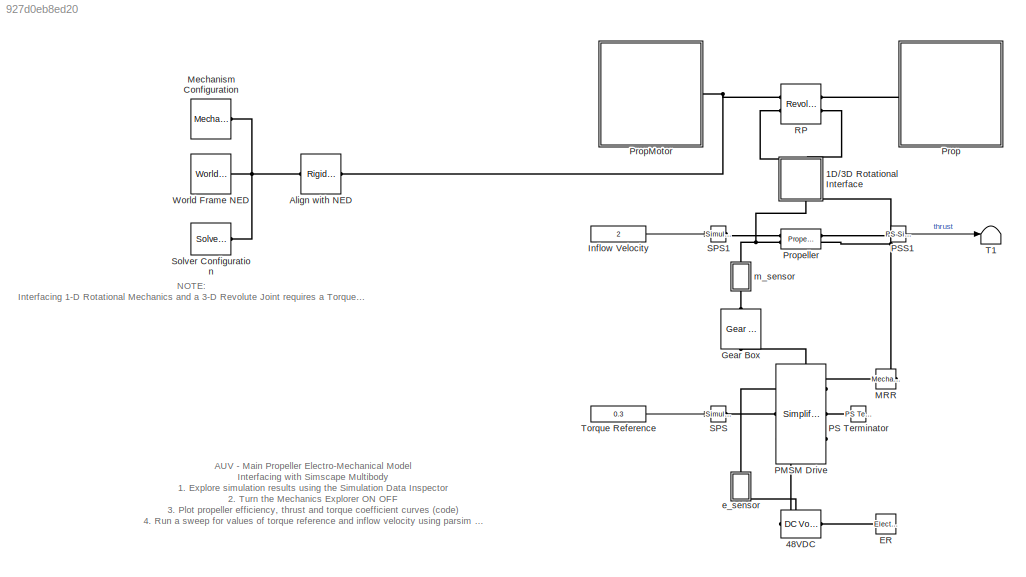
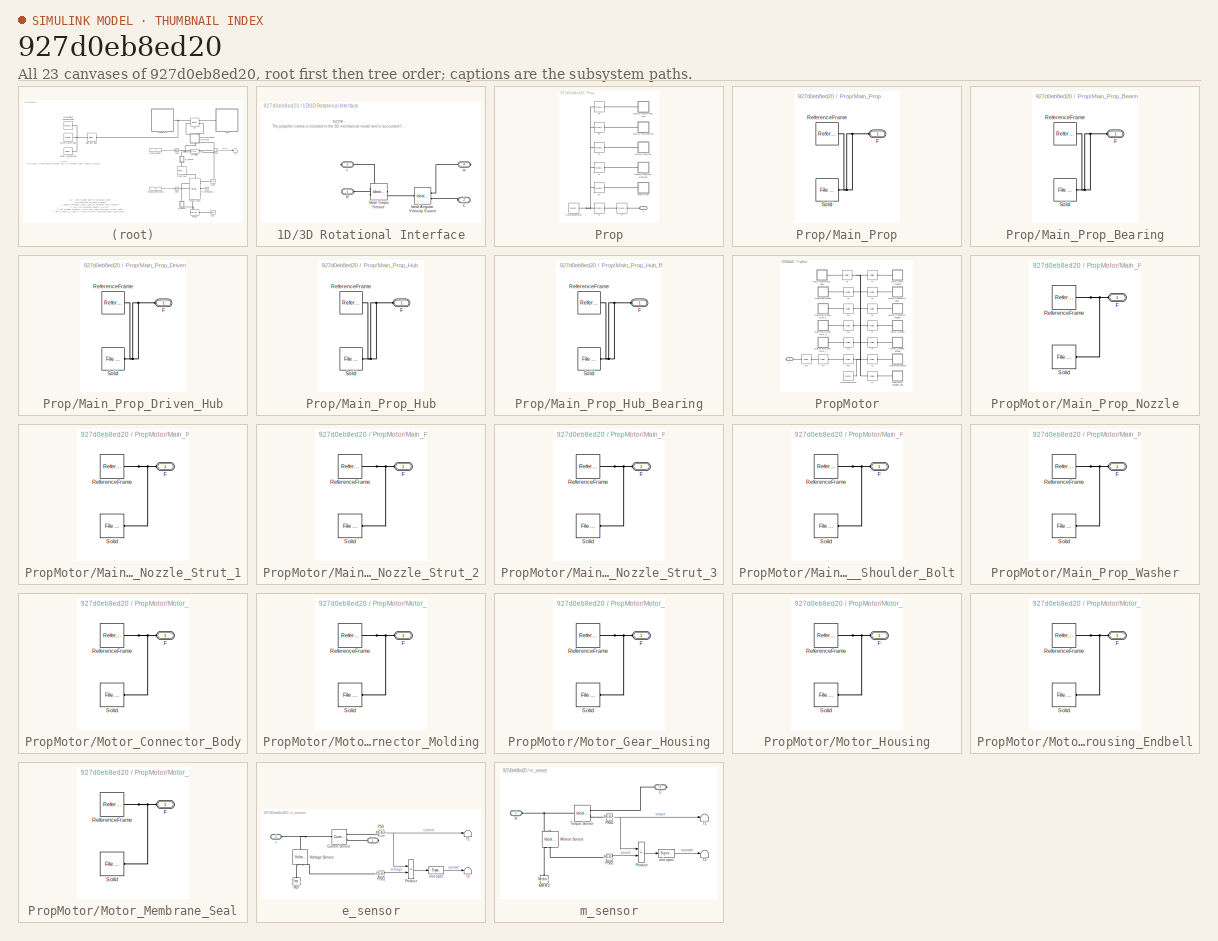
[diagram: thumbnail index - all 23 canvases of the model, root first then tree order]
MODEL slx_927d0eb8ed20
KIND model
CONFIG AbsTol = auto
CONFIG EnableMultiTasking = on
CONFIG FixedStep = auto
CONFIG MaxStep = 0.01
CONFIG MinStep = auto
CONFIG PreLoadFcn = AUV_VehicleParameters;
CONFIG RelTol = 1e-3
CONFIG SampleTimeConstraint = Unconstrained
CONFIG Solver = ode23t
CONFIG SolverName = ode23t
CONFIG StartTime = 0.0
CONFIG StopTime = 0.5
WORKSPACE source: external: MATLAB File  (data not in archive)
BLOCK [SubSystem] 1D//3D Rotational Interface
  NameLocation = right
  Ports = [0, 0, 0, 0, 0, 2, 2]
  RequestExecContextInheritance = off
BLOCK [PMIOPort] 1D//3D Rotational Interface/C
  Port = 2
  Side = Left
BLOCK [Reference] 1D//3D Rotational Interface/Ideal Angular Velocity Source  REF=fl_lib/Mechanical/Mechanical Sources/Ideal Angular
Velocity Source
  Ports = [0, 0, 0, 0, 0, 1, 2]
  SourceBlock = fl_lib/Mechanical/Mechanical Sources/Ideal Angular\nVelocity Source
  SourceProductBaseCode = SS
  SourceType = Ideal Angular\nVelocity Source
BLOCK [Reference] 1D//3D Rotational Interface/Ideal Torque Sensor  REF=fl_lib/Mechanical/Mechanical Sensors/Ideal Torque Sensor
  Ports = [0, 0, 0, 0, 0, 1, 2]
  SourceBlock = fl_lib/Mechanical/Mechanical Sensors/Ideal Torque Sensor
  SourceProductBaseCode = SS
  SourceType = Ideal Torque Sensor
BLOCK [PMIOPort] 1D//3D Rotational Interface/R
  Side = Left
BLOCK [PMIOPort] 1D//3D Rotational Interface/t
  Port = 3
  Side = Right
BLOCK [PMIOPort] 1D//3D Rotational Interface/w
  Port = 4
  Side = Right
BLOCK [Reference] 48VDC  REF=fl_lib/Electrical/Electrical Sources/DC Voltage Source
  Ports = [0, 0, 0, 0, 0, 1, 1]
  SourceBlock = fl_lib/Electrical/Electrical Sources/DC Voltage Source
  SourceProductBaseCode = SS
  SourceType = DC Voltage Source
BLOCK [Reference] Align with NED  REF=sm_lib/Frames and
Transforms/Rigid
Transform
  Ports = [0, 0, 0, 0, 0, 1, 1]
  SourceBlock = sm_lib/Frames and\nTransforms/Rigid\nTransform
  SourceProductBaseCode = MS
  SourceType = Rigid\nTransform
BLOCK [Reference] ER  REF=fl_lib/Electrical/Electrical Elements/Electrical Reference
  NameLocation = top
  Ports = [0, 0, 0, 0, 0, 1]
  SourceBlock = fl_lib/Electrical/Electrical Elements/Electrical Reference
  SourceProductBaseCode = SS
  SourceType = Electrical Reference
BLOCK [Reference] Gear Box  REF=fl_lib/Mechanical/Mechanisms/Gear Box
  NameLocation = right
  Ports = [0, 0, 0, 0, 0, 1, 1]
  SourceBlock = fl_lib/Mechanical/Mechanisms/Gear Box
  SourceProductBaseCode = SS
  SourceType = Gear Box
BLOCK [Constant] Inflow Velocity
  Value = 2
BLOCK [Reference] MRR  REF=fl_lib/Mechanical/Rotational Elements/Mechanical
Rotational Reference
  NameLocation = top
  Ports = [0, 0, 0, 0, 0, 1]
  SourceBlock = fl_lib/Mechanical/Rotational Elements/Mechanical\nRotational Reference
  SourceProductBaseCode = SS
  SourceType = Mechanical\nRotational Reference
BLOCK [Reference] Mechanism Configuration  REF=sm_lib/Utilities/Mechanism
Configuration
  NameLocation = top
  Ports = [0, 0, 0, 0, 0, 0, 1]
  SourceBlock = sm_lib/Utilities/Mechanism\nConfiguration
  SourceProductBaseCode = MS
  SourceType = Mechanism\nConfiguration
BLOCK [Reference] PMSM Drive  REF=ee_lib/Electromechanical/Permanent Magnet/Simplified PMSM
Drive
  Ports = [0, 0, 0, 0, 0, 3, 3]
  SourceBlock = ee_lib/Electromechanical/Permanent Magnet/Simplified PMSM\nDrive
  SourceProductBaseCode = PS
  SourceType = Simplified PMSM\nDrive
BLOCK [Reference] PS Terminator  REF=fl_lib/Physical Signals/Sinks/PS Terminator
  Ports = [0, 0, 0, 0, 0, 1]
  SourceBlock = fl_lib/Physical Signals/Sinks/PS Terminator
  SourceProductBaseCode = SS
  SourceType = PS Terminator
BLOCK [Reference] PSS1  REF=nesl_utility/PS-Simulink
Converter
  Ports = [0, 1, 0, 0, 0, 1]
  SourceBlock = nesl_utility/PS-Simulink\nConverter
  SourceProductBaseCode = SS
  SourceType = PS-Simulink\nConverter
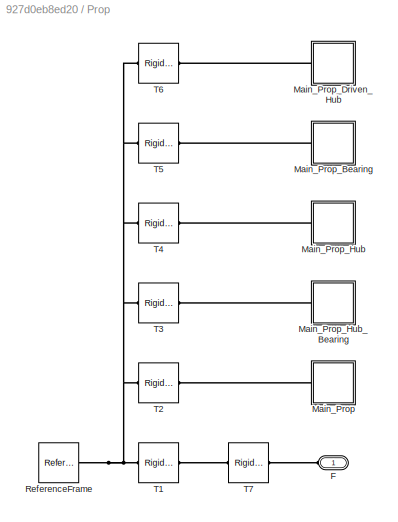
BLOCK [SubSystem] Prop
  Ports = [0, 0, 0, 0, 0, 1]
  RequestExecContextInheritance = off
BLOCK [PMIOPort] Prop/F
  Side = Left
BLOCK [SubSystem] Prop/Main_Prop
  Ports = [0, 0, 0, 0, 0, 1]
  RequestExecContextInheritance = off
BLOCK [PMIOPort] Prop/Main_Prop/F
  Side = Left
BLOCK [Reference] Prop/Main_Prop/ReferenceFrame  REF=sm_lib/Frames and
Transforms/Reference
Frame
  Ports = [0, 0, 0, 0, 0, 0, 1]
  SourceBlock = sm_lib/Frames and\nTransforms/Reference\nFrame
  SourceProductBaseCode = MS
  SourceType = Reference\nFrame
BLOCK [Reference] Prop/Main_Prop/Solid  REF=sm_lib/Body Elements/File Solid
  Ports = [0, 0, 0, 0, 0, 0, 1]
  SourceBlock = sm_lib/Body Elements/File Solid
  SourceProductBaseCode = MS
  SourceType = File Solid
BLOCK [SubSystem] Prop/Main_Prop_Bearing
  Ports = [0, 0, 0, 0, 0, 1]
  RequestExecContextInheritance = off
BLOCK [PMIOPort] Prop/Main_Prop_Bearing/F
  Side = Left
BLOCK [Reference] Prop/Main_Prop_Bearing/ReferenceFrame  REF=sm_lib/Frames and
Transforms/Reference
Frame
  Ports = [0, 0, 0, 0, 0, 0, 1]
  SourceBlock = sm_lib/Frames and\nTransforms/Reference\nFrame
  SourceProductBaseCode = MS
  SourceType = Reference\nFrame
BLOCK [Reference] Prop/Main_Prop_Bearing/Solid  REF=sm_lib/Body Elements/File Solid
  Ports = [0, 0, 0, 0, 0, 0, 1]
  SourceBlock = sm_lib/Body Elements/File Solid
  SourceProductBaseCode = MS
  SourceType = File Solid
BLOCK [SubSystem] Prop/Main_Prop_Driven_Hub
  Ports = [0, 0, 0, 0, 0, 1]
  RequestExecContextInheritance = off
BLOCK [PMIOPort] Prop/Main_Prop_Driven_Hub/F
  Side = Left
BLOCK [Reference] Prop/Main_Prop_Driven_Hub/ReferenceFrame  REF=sm_lib/Frames and
Transforms/Reference
Frame
  Ports = [0, 0, 0, 0, 0, 0, 1]
  SourceBlock = sm_lib/Frames and\nTransforms/Reference\nFrame
  SourceProductBaseCode = MS
  SourceType = Reference\nFrame
BLOCK [Reference] Prop/Main_Prop_Driven_Hub/Solid  REF=sm_lib/Body Elements/File Solid
  Ports = [0, 0, 0, 0, 0, 0, 1]
  SourceBlock = sm_lib/Body Elements/File Solid
  SourceProductBaseCode = MS
  SourceType = File Solid
BLOCK [SubSystem] Prop/Main_Prop_Hub
  Ports = [0, 0, 0, 0, 0, 1]
  RequestExecContextInheritance = off
BLOCK [PMIOPort] Prop/Main_Prop_Hub/F
  Side = Left
BLOCK [Reference] Prop/Main_Prop_Hub/ReferenceFrame  REF=sm_lib/Frames and
Transforms/Reference
Frame
  Ports = [0, 0, 0, 0, 0, 0, 1]
  SourceBlock = sm_lib/Frames and\nTransforms/Reference\nFrame
  SourceProductBaseCode = MS
  SourceType = Reference\nFrame
BLOCK [Reference] Prop/Main_Prop_Hub/Solid  REF=sm_lib/Body Elements/File Solid
  Ports = [0, 0, 0, 0, 0, 0, 1]
  SourceBlock = sm_lib/Body Elements/File Solid
  SourceProductBaseCode = MS
  SourceType = File Solid
BLOCK [SubSystem] Prop/Main_Prop_Hub_Bearing
  Ports = [0, 0, 0, 0, 0, 1]
  RequestExecContextInheritance = off
BLOCK [PMIOPort] Prop/Main_Prop_Hub_Bearing/F
  Side = Left
BLOCK [Reference] Prop/Main_Prop_Hub_Bearing/ReferenceFrame  REF=sm_lib/Frames and
Transforms/Reference
Frame
  Ports = [0, 0, 0, 0, 0, 0, 1]
  SourceBlock = sm_lib/Frames and\nTransforms/Reference\nFrame
  SourceProductBaseCode = MS
  SourceType = Reference\nFrame
BLOCK [Reference] Prop/Main_Prop_Hub_Bearing/Solid  REF=sm_lib/Body Elements/File Solid
  Ports = [0, 0, 0, 0, 0, 0, 1]
  SourceBlock = sm_lib/Body Elements/File Solid
  SourceProductBaseCode = MS
  SourceType = File Solid
BLOCK [Reference] Prop/ReferenceFrame  REF=sm_lib/Frames and
Transforms/Reference
Frame
  Ports = [0, 0, 0, 0, 0, 0, 1]
  SourceBlock = sm_lib/Frames and\nTransforms/Reference\nFrame
  SourceProductBaseCode = MS
  SourceType = Reference\nFrame
BLOCK [Reference] Prop/T1  REF=sm_lib/Frames and
Transforms/Rigid
Transform
  Ports = [0, 0, 0, 0, 0, 1, 1]
  SourceBlock = sm_lib/Frames and\nTransforms/Rigid\nTransform
  SourceProductBaseCode = MS
  SourceType = Rigid\nTransform
BLOCK [Reference] Prop/T2  REF=sm_lib/Frames and
Transforms/Rigid
Transform
  Ports = [0, 0, 0, 0, 0, 1, 1]
  SourceBlock = sm_lib/Frames and\nTransforms/Rigid\nTransform
  SourceProductBaseCode = MS
  SourceType = Rigid\nTransform
BLOCK [Reference] Prop/T3  REF=sm_lib/Frames and
Transforms/Rigid
Transform
  Ports = [0, 0, 0, 0, 0, 1, 1]
  SourceBlock = sm_lib/Frames and\nTransforms/Rigid\nTransform
  SourceProductBaseCode = MS
  SourceType = Rigid\nTransform
BLOCK [Reference] Prop/T4  REF=sm_lib/Frames and
Transforms/Rigid
Transform
  Ports = [0, 0, 0, 0, 0, 1, 1]
  SourceBlock = sm_lib/Frames and\nTransforms/Rigid\nTransform
  SourceProductBaseCode = MS
  SourceType = Rigid\nTransform
BLOCK [Reference] Prop/T5  REF=sm_lib/Frames and
Transforms/Rigid
Transform
  Ports = [0, 0, 0, 0, 0, 1, 1]
  SourceBlock = sm_lib/Frames and\nTransforms/Rigid\nTransform
  SourceProductBaseCode = MS
  SourceType = Rigid\nTransform
BLOCK [Reference] Prop/T6  REF=sm_lib/Frames and
Transforms/Rigid
Transform
  Ports = [0, 0, 0, 0, 0, 1, 1]
  SourceBlock = sm_lib/Frames and\nTransforms/Rigid\nTransform
  SourceProductBaseCode = MS
  SourceType = Rigid\nTransform
BLOCK [Reference] Prop/T7  REF=sm_lib/Frames and
Transforms/Rigid
Transform
  Ports = [0, 0, 0, 0, 0, 1, 1]
  SourceBlock = sm_lib/Frames and\nTransforms/Rigid\nTransform
  SourceProductBaseCode = MS
  SourceType = Rigid\nTransform
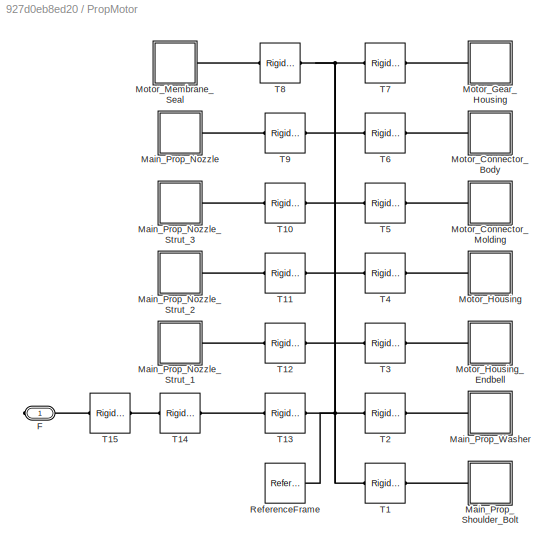
BLOCK [SubSystem] PropMotor
  Ports = [0, 0, 0, 0, 0, 0, 1]
  RequestExecContextInheritance = off
BLOCK [PMIOPort] PropMotor/F
  Side = Right
BLOCK [SubSystem] PropMotor/Main_Prop_Nozzle
  Ports = [0, 0, 0, 0, 0, 1]
  RequestExecContextInheritance = off
BLOCK [PMIOPort] PropMotor/Main_Prop_Nozzle/F
  Side = Left
BLOCK [Reference] PropMotor/Main_Prop_Nozzle/ReferenceFrame  REF=sm_lib/Frames and
Transforms/Reference
Frame
  Ports = [0, 0, 0, 0, 0, 0, 1]
  SourceBlock = sm_lib/Frames and\nTransforms/Reference\nFrame
  SourceProductBaseCode = MS
  SourceType = Reference\nFrame
BLOCK [Reference] PropMotor/Main_Prop_Nozzle/Solid  REF=sm_lib/Body Elements/File Solid
  Ports = [0, 0, 0, 0, 0, 0, 1]
  SourceBlock = sm_lib/Body Elements/File Solid
  SourceProductBaseCode = MS
  SourceType = File Solid
BLOCK [SubSystem] PropMotor/Main_Prop_Nozzle_Strut_1
  Ports = [0, 0, 0, 0, 0, 1]
  RequestExecContextInheritance = off
BLOCK [PMIOPort] PropMotor/Main_Prop_Nozzle_Strut_1/F
  Side = Left
BLOCK [Reference] PropMotor/Main_Prop_Nozzle_Strut_1/ReferenceFrame  REF=sm_lib/Frames and
Transforms/Reference
Frame
  Ports = [0, 0, 0, 0, 0, 0, 1]
  SourceBlock = sm_lib/Frames and\nTransforms/Reference\nFrame
  SourceProductBaseCode = MS
  SourceType = Reference\nFrame
BLOCK [Reference] PropMotor/Main_Prop_Nozzle_Strut_1/Solid  REF=sm_lib/Body Elements/File Solid
  Ports = [0, 0, 0, 0, 0, 0, 1]
  SourceBlock = sm_lib/Body Elements/File Solid
  SourceProductBaseCode = MS
  SourceType = File Solid
BLOCK [SubSystem] PropMotor/Main_Prop_Nozzle_Strut_2
  Ports = [0, 0, 0, 0, 0, 1]
  RequestExecContextInheritance = off
BLOCK [PMIOPort] PropMotor/Main_Prop_Nozzle_Strut_2/F
  Side = Left
BLOCK [Reference] PropMotor/Main_Prop_Nozzle_Strut_2/ReferenceFrame  REF=sm_lib/Frames and
Transforms/Reference
Frame
  Ports = [0, 0, 0, 0, 0, 0, 1]
  SourceBlock = sm_lib/Frames and\nTransforms/Reference\nFrame
  SourceProductBaseCode = MS
  SourceType = Reference\nFrame
BLOCK [Reference] PropMotor/Main_Prop_Nozzle_Strut_2/Solid  REF=sm_lib/Body Elements/File Solid
  Ports = [0, 0, 0, 0, 0, 0, 1]
  SourceBlock = sm_lib/Body Elements/File Solid
  SourceProductBaseCode = MS
  SourceType = File Solid
BLOCK [SubSystem] PropMotor/Main_Prop_Nozzle_Strut_3
  Ports = [0, 0, 0, 0, 0, 1]
  RequestExecContextInheritance = off
BLOCK [PMIOPort] PropMotor/Main_Prop_Nozzle_Strut_3/F
  Side = Left
BLOCK [Reference] PropMotor/Main_Prop_Nozzle_Strut_3/ReferenceFrame  REF=sm_lib/Frames and
Transforms/Reference
Frame
  Ports = [0, 0, 0, 0, 0, 0, 1]
  SourceBlock = sm_lib/Frames and\nTransforms/Reference\nFrame
  SourceProductBaseCode = MS
  SourceType = Reference\nFrame
BLOCK [Reference] PropMotor/Main_Prop_Nozzle_Strut_3/Solid  REF=sm_lib/Body Elements/File Solid
  Ports = [0, 0, 0, 0, 0, 0, 1]
  SourceBlock = sm_lib/Body Elements/File Solid
  SourceProductBaseCode = MS
  SourceType = File Solid
BLOCK [SubSystem] PropMotor/Main_Prop_Shoulder_Bolt
  Ports = [0, 0, 0, 0, 0, 1]
  RequestExecContextInheritance = off
BLOCK [PMIOPort] PropMotor/Main_Prop_Shoulder_Bolt/F
  Side = Left
BLOCK [Reference] PropMotor/Main_Prop_Shoulder_Bolt/ReferenceFrame  REF=sm_lib/Frames and
Transforms/Reference
Frame
  Ports = [0, 0, 0, 0, 0, 0, 1]
  SourceBlock = sm_lib/Frames and\nTransforms/Reference\nFrame
  SourceProductBaseCode = MS
  SourceType = Reference\nFrame
BLOCK [Reference] PropMotor/Main_Prop_Shoulder_Bolt/Solid  REF=sm_lib/Body Elements/File Solid
  Ports = [0, 0, 0, 0, 0, 0, 1]
  SourceBlock = sm_lib/Body Elements/File Solid
  SourceProductBaseCode = MS
  SourceType = File Solid
BLOCK [SubSystem] PropMotor/Main_Prop_Washer
  Ports = [0, 0, 0, 0, 0, 1]
  RequestExecContextInheritance = off
BLOCK [PMIOPort] PropMotor/Main_Prop_Washer/F
  Side = Left
BLOCK [Reference] PropMotor/Main_Prop_Washer/ReferenceFrame  REF=sm_lib/Frames and
Transforms/Reference
Frame
  Ports = [0, 0, 0, 0, 0, 0, 1]
  SourceBlock = sm_lib/Frames and\nTransforms/Reference\nFrame
  SourceProductBaseCode = MS
  SourceType = Reference\nFrame
BLOCK [Reference] PropMotor/Main_Prop_Washer/Solid  REF=sm_lib/Body Elements/File Solid
  Ports = [0, 0, 0, 0, 0, 0, 1]
  SourceBlock = sm_lib/Body Elements/File Solid
  SourceProductBaseCode = MS
  SourceType = File Solid
BLOCK [SubSystem] PropMotor/Motor_Connector_Body
  Ports = [0, 0, 0, 0, 0, 1]
  RequestExecContextInheritance = off
BLOCK [PMIOPort] PropMotor/Motor_Connector_Body/F
  Side = Left
BLOCK [Reference] PropMotor/Motor_Connector_Body/ReferenceFrame  REF=sm_lib/Frames and
Transforms/Reference
Frame
  Ports = [0, 0, 0, 0, 0, 0, 1]
  SourceBlock = sm_lib/Frames and\nTransforms/Reference\nFrame
  SourceProductBaseCode = MS
  SourceType = Reference\nFrame
BLOCK [Reference] PropMotor/Motor_Connector_Body/Solid  REF=sm_lib/Body Elements/File Solid
  Ports = [0, 0, 0, 0, 0, 0, 1]
  SourceBlock = sm_lib/Body Elements/File Solid
  SourceProductBaseCode = MS
  SourceType = File Solid
BLOCK [SubSystem] PropMotor/Motor_Connector_Molding
  Ports = [0, 0, 0, 0, 0, 1]
  RequestExecContextInheritance = off
BLOCK [PMIOPort] PropMotor/Motor_Connector_Molding/F
  Side = Left
BLOCK [Reference] PropMotor/Motor_Connector_Molding/ReferenceFrame  REF=sm_lib/Frames and
Transforms/Reference
Frame
  Ports = [0, 0, 0, 0, 0, 0, 1]
  SourceBlock = sm_lib/Frames and\nTransforms/Reference\nFrame
  SourceProductBaseCode = MS
  SourceType = Reference\nFrame
BLOCK [Reference] PropMotor/Motor_Connector_Molding/Solid  REF=sm_lib/Body Elements/File Solid
  Ports = [0, 0, 0, 0, 0, 0, 1]
  SourceBlock = sm_lib/Body Elements/File Solid
  SourceProductBaseCode = MS
  SourceType = File Solid
BLOCK [SubSystem] PropMotor/Motor_Gear_Housing
  Ports = [0, 0, 0, 0, 0, 1]
  RequestExecContextInheritance = off
BLOCK [PMIOPort] PropMotor/Motor_Gear_Housing/F
  Side = Left
BLOCK [Reference] PropMotor/Motor_Gear_Housing/ReferenceFrame  REF=sm_lib/Frames and
Transforms/Reference
Frame
  Ports = [0, 0, 0, 0, 0, 0, 1]
  SourceBlock = sm_lib/Frames and\nTransforms/Reference\nFrame
  SourceProductBaseCode = MS
  SourceType = Reference\nFrame
BLOCK [Reference] PropMotor/Motor_Gear_Housing/Solid  REF=sm_lib/Body Elements/File Solid
  Ports = [0, 0, 0, 0, 0, 0, 1]
  SourceBlock = sm_lib/Body Elements/File Solid
  SourceProductBaseCode = MS
  SourceType = File Solid
BLOCK [SubSystem] PropMotor/Motor_Housing
  Ports = [0, 0, 0, 0, 0, 1]
  RequestExecContextInheritance = off
BLOCK [PMIOPort] PropMotor/Motor_Housing/F
  Side = Left
BLOCK [Reference] PropMotor/Motor_Housing/ReferenceFrame  REF=sm_lib/Frames and
Transforms/Reference
Frame
  Ports = [0, 0, 0, 0, 0, 0, 1]
  SourceBlock = sm_lib/Frames and\nTransforms/Reference\nFrame
  SourceProductBaseCode = MS
  SourceType = Reference\nFrame
BLOCK [Reference] PropMotor/Motor_Housing/Solid  REF=sm_lib/Body Elements/File Solid
  Ports = [0, 0, 0, 0, 0, 0, 1]
  SourceBlock = sm_lib/Body Elements/File Solid
  SourceProductBaseCode = MS
  SourceType = File Solid
BLOCK [SubSystem] PropMotor/Motor_Housing_Endbell
  Ports = [0, 0, 0, 0, 0, 1]
  RequestExecContextInheritance = off
BLOCK [PMIOPort] PropMotor/Motor_Housing_Endbell/F
  Side = Left
BLOCK [Reference] PropMotor/Motor_Housing_Endbell/ReferenceFrame  REF=sm_lib/Frames and
Transforms/Reference
Frame
  Ports = [0, 0, 0, 0, 0, 0, 1]
  SourceBlock = sm_lib/Frames and\nTransforms/Reference\nFrame
  SourceProductBaseCode = MS
  SourceType = Reference\nFrame
BLOCK [Reference] PropMotor/Motor_Housing_Endbell/Solid  REF=sm_lib/Body Elements/File Solid
  Ports = [0, 0, 0, 0, 0, 0, 1]
  SourceBlock = sm_lib/Body Elements/File Solid
  SourceProductBaseCode = MS
  SourceType = File Solid
BLOCK [SubSystem] PropMotor/Motor_Membrane_Seal
  Ports = [0, 0, 0, 0, 0, 1]
  RequestExecContextInheritance = off
BLOCK [PMIOPort] PropMotor/Motor_Membrane_Seal/F
  Side = Left
BLOCK [Reference] PropMotor/Motor_Membrane_Seal/ReferenceFrame  REF=sm_lib/Frames and
Transforms/Reference
Frame
  Ports = [0, 0, 0, 0, 0, 0, 1]
  SourceBlock = sm_lib/Frames and\nTransforms/Reference\nFrame
  SourceProductBaseCode = MS
  SourceType = Reference\nFrame
BLOCK [Reference] PropMotor/Motor_Membrane_Seal/Solid  REF=sm_lib/Body Elements/File Solid
  Ports = [0, 0, 0, 0, 0, 0, 1]
  SourceBlock = sm_lib/Body Elements/File Solid
  SourceProductBaseCode = MS
  SourceType = File Solid
BLOCK [Reference] PropMotor/ReferenceFrame  REF=sm_lib/Frames and
Transforms/Reference
Frame
  Ports = [0, 0, 0, 0, 0, 0, 1]
  SourceBlock = sm_lib/Frames and\nTransforms/Reference\nFrame
  SourceProductBaseCode = MS
  SourceType = Reference\nFrame
BLOCK [Reference] PropMotor/T1  REF=sm_lib/Frames and
Transforms/Rigid
Transform
  Ports = [0, 0, 0, 0, 0, 1, 1]
  SourceBlock = sm_lib/Frames and\nTransforms/Rigid\nTransform
  SourceProductBaseCode = MS
  SourceType = Rigid\nTransform
BLOCK [Reference] PropMotor/T10  REF=sm_lib/Frames and
Transforms/Rigid
Transform
  Ports = [0, 0, 0, 0, 0, 1, 1]
  SourceBlock = sm_lib/Frames and\nTransforms/Rigid\nTransform
  SourceProductBaseCode = MS
  SourceType = Rigid\nTransform
BLOCK [Reference] PropMotor/T11  REF=sm_lib/Frames and
Transforms/Rigid
Transform
  Ports = [0, 0, 0, 0, 0, 1, 1]
  SourceBlock = sm_lib/Frames and\nTransforms/Rigid\nTransform
  SourceProductBaseCode = MS
  SourceType = Rigid\nTransform
BLOCK [Reference] PropMotor/T12  REF=sm_lib/Frames and
Transforms/Rigid
Transform
  Ports = [0, 0, 0, 0, 0, 1, 1]
  SourceBlock = sm_lib/Frames and\nTransforms/Rigid\nTransform
  SourceProductBaseCode = MS
  SourceType = Rigid\nTransform
BLOCK [Reference] PropMotor/T13  REF=sm_lib/Frames and
Transforms/Rigid
Transform
  Ports = [0, 0, 0, 0, 0, 1, 1]
  SourceBlock = sm_lib/Frames and\nTransforms/Rigid\nTransform
  SourceProductBaseCode = MS
  SourceType = Rigid\nTransform
BLOCK [Reference] PropMotor/T14  REF=sm_lib/Frames and
Transforms/Rigid
Transform
  Ports = [0, 0, 0, 0, 0, 1, 1]
  SourceBlock = sm_lib/Frames and\nTransforms/Rigid\nTransform
  SourceProductBaseCode = MS
  SourceType = Rigid\nTransform
BLOCK [Reference] PropMotor/T15  REF=sm_lib/Frames and
Transforms/Rigid
Transform
  Ports = [0, 0, 0, 0, 0, 1, 1]
  SourceBlock = sm_lib/Frames and\nTransforms/Rigid\nTransform
  SourceProductBaseCode = MS
  SourceType = Rigid\nTransform
BLOCK [Reference] PropMotor/T2  REF=sm_lib/Frames and
Transforms/Rigid
Transform
  Ports = [0, 0, 0, 0, 0, 1, 1]
  SourceBlock = sm_lib/Frames and\nTransforms/Rigid\nTransform
  SourceProductBaseCode = MS
  SourceType = Rigid\nTransform
BLOCK [Reference] PropMotor/T3  REF=sm_lib/Frames and
Transforms/Rigid
Transform
  Ports = [0, 0, 0, 0, 0, 1, 1]
  SourceBlock = sm_lib/Frames and\nTransforms/Rigid\nTransform
  SourceProductBaseCode = MS
  SourceType = Rigid\nTransform
BLOCK [Reference] PropMotor/T4  REF=sm_lib/Frames and
Transforms/Rigid
Transform
  Ports = [0, 0, 0, 0, 0, 1, 1]
  SourceBlock = sm_lib/Frames and\nTransforms/Rigid\nTransform
  SourceProductBaseCode = MS
  SourceType = Rigid\nTransform
BLOCK [Reference] PropMotor/T5  REF=sm_lib/Frames and
Transforms/Rigid
Transform
  Ports = [0, 0, 0, 0, 0, 1, 1]
  SourceBlock = sm_lib/Frames and\nTransforms/Rigid\nTransform
  SourceProductBaseCode = MS
  SourceType = Rigid\nTransform
BLOCK [Reference] PropMotor/T6  REF=sm_lib/Frames and
Transforms/Rigid
Transform
  Ports = [0, 0, 0, 0, 0, 1, 1]
  SourceBlock = sm_lib/Frames and\nTransforms/Rigid\nTransform
  SourceProductBaseCode = MS
  SourceType = Rigid\nTransform
BLOCK [Reference] PropMotor/T7  REF=sm_lib/Frames and
Transforms/Rigid
Transform
  Ports = [0, 0, 0, 0, 0, 1, 1]
  SourceBlock = sm_lib/Frames and\nTransforms/Rigid\nTransform
  SourceProductBaseCode = MS
  SourceType = Rigid\nTransform
BLOCK [Reference] PropMotor/T8  REF=sm_lib/Frames and
Transforms/Rigid
Transform
  Ports = [0, 0, 0, 0, 0, 1, 1]
  SourceBlock = sm_lib/Frames and\nTransforms/Rigid\nTransform
  SourceProductBaseCode = MS
  SourceType = Rigid\nTransform
BLOCK [Reference] PropMotor/T9  REF=sm_lib/Frames and
Transforms/Rigid
Transform
  Ports = [0, 0, 0, 0, 0, 1, 1]
  SourceBlock = sm_lib/Frames and\nTransforms/Rigid\nTransform
  SourceProductBaseCode = MS
  SourceType = Rigid\nTransform
BLOCK [Reference] Propeller  REF=AUVPropulsionSSC_lib/Propeller
  Ports = [0, 0, 0, 0, 0, 2, 2]
  SourceBlock = AUVPropulsionSSC_lib/Propeller
  SourceType = Propeller
BLOCK [Reference] RP  REF=sm_lib/Joints/Revolute Joint
  Ports = [0, 0, 0, 0, 0, 2, 2]
  SourceBlock = sm_lib/Joints/Revolute Joint
  SourceProductBaseCode = MS
  SourceType = Revolute Joint
BLOCK [Reference] SPS  REF=nesl_utility/Simulink-PS
Converter
  Ports = [1, 0, 0, 0, 0, 0, 1]
  SourceBlock = nesl_utility/Simulink-PS\nConverter
  SourceProductBaseCode = SS
  SourceType = Simulink-PS\nConverter
BLOCK [Reference] SPS1  REF=nesl_utility/Simulink-PS
Converter
  Ports = [1, 0, 0, 0, 0, 0, 1]
  SourceBlock = nesl_utility/Simulink-PS\nConverter
  SourceProductBaseCode = SS
  SourceType = Simulink-PS\nConverter
BLOCK [Reference] Solver Configuration  REF=nesl_utility/Solver
Configuration
  NameLocation = top
  Ports = [0, 0, 0, 0, 0, 0, 1]
  SourceBlock = nesl_utility/Solver\nConfiguration
  SourceProductBaseCode = MT,SS
  SourceType = Solver\nConfiguration
BLOCK [Terminator] T1
BLOCK [Constant] Torque Reference
  Value = 0.3
BLOCK [Reference] World Frame NED  REF=sm_lib/Frames and
Transforms/World Frame
  Ports = [0, 0, 0, 0, 0, 0, 1]
  SourceBlock = sm_lib/Frames and\nTransforms/World Frame
  SourceProductBaseCode = MS
  SourceType = World Frame
BLOCK [SubSystem] e_sensor
  NameLocation = right
  Ports = [0, 0, 0, 0, 0, 1, 1]
  RequestExecContextInheritance = off
BLOCK [PMIOPort] e_sensor/+
  Side = Left
BLOCK [PMIOPort] e_sensor/-
  Port = 2
  Side = Right
BLOCK [Reference] e_sensor/Current Sensor  REF=fl_lib/Electrical/Electrical Sensors/Current Sensor
  Ports = [0, 0, 0, 0, 0, 1, 2]
  SourceBlock = fl_lib/Electrical/Electrical Sensors/Current Sensor
  SourceProductBaseCode = SS
  SourceType = Current Sensor
BLOCK [Reference] e_sensor/PSS  REF=nesl_utility/PS-Simulink
Converter
  Ports = [0, 1, 0, 0, 0, 1]
  SourceBlock = nesl_utility/PS-Simulink\nConverter
  SourceProductBaseCode = SS
  SourceType = PS-Simulink\nConverter
BLOCK [Reference] e_sensor/PSS1  REF=nesl_utility/PS-Simulink
Converter
  Ports = [0, 1, 0, 0, 0, 1]
  SourceBlock = nesl_utility/PS-Simulink\nConverter
  SourceProductBaseCode = SS
  SourceType = PS-Simulink\nConverter
BLOCK [Product] e_sensor/Product
  Ports = [2, 1]
BLOCK [Reference] e_sensor/REF  REF=fl_lib/Electrical/Electrical Elements/Electrical Reference
  NameLocation = right
  Ports = [0, 0, 0, 0, 0, 1]
  SourceBlock = fl_lib/Electrical/Electrical Elements/Electrical Reference
  SourceProductBaseCode = SS
  SourceType = Electrical Reference
BLOCK [Terminator] e_sensor/T1
BLOCK [Terminator] e_sensor/T2
BLOCK [Reference] e_sensor/Voltage Sensor  REF=fl_lib/Electrical/Electrical Sensors/Voltage Sensor
  NameLocation = right
  Ports = [0, 0, 0, 0, 0, 1, 2]
  SourceBlock = fl_lib/Electrical/Electrical Sensors/Voltage Sensor
  SourceProductBaseCode = SS
  SourceType = Voltage Sensor
BLOCK [SignalSpecification] e_sensor/unit spec
  Unit = W
BLOCK [SubSystem] m_sensor
  NameLocation = right
  Ports = [0, 0, 0, 0, 0, 1, 1]
  RequestExecContextInheritance = off
BLOCK [PMIOPort] m_sensor/C
  Port = 2
  Side = Right
BLOCK [Reference] m_sensor/MRR2  REF=fl_lib/Mechanical/Rotational Elements/Mechanical
Rotational Reference
  NameLocation = right
  Ports = [0, 0, 0, 0, 0, 1]
  SourceBlock = fl_lib/Mechanical/Rotational Elements/Mechanical\nRotational Reference
  SourceProductBaseCode = SS
  SourceType = Mechanical\nRotational Reference
BLOCK [Reference] m_sensor/Motion Sensor  REF=fl_lib/Mechanical/Mechanical Sensors/Ideal Rotational
Motion Sensor
  NameLocation = left
  Ports = [0, 0, 0, 0, 0, 1, 3]
  SourceBlock = fl_lib/Mechanical/Mechanical Sensors/Ideal Rotational\nMotion Sensor
  SourceProductBaseCode = SS
  SourceType = Ideal Rotational\nMotion Sensor
BLOCK [Reference] m_sensor/PSS1  REF=nesl_utility/PS-Simulink
Converter
  Ports = [0, 1, 0, 0, 0, 1]
  SourceBlock = nesl_utility/PS-Simulink\nConverter
  SourceProductBaseCode = SS
  SourceType = PS-Simulink\nConverter
BLOCK [Reference] m_sensor/PSS2  REF=nesl_utility/PS-Simulink
Converter
  Ports = [0, 1, 0, 0, 0, 1]
  SourceBlock = nesl_utility/PS-Simulink\nConverter
  SourceProductBaseCode = SS
  SourceType = PS-Simulink\nConverter
BLOCK [Product] m_sensor/Product
  Ports = [2, 1]
BLOCK [PMIOPort] m_sensor/R
  Side = Left
BLOCK [Terminator] m_sensor/T1
BLOCK [Terminator] m_sensor/T2
BLOCK [Reference] m_sensor/Torque Sensor  REF=fl_lib/Mechanical/Mechanical Sensors/Ideal Torque Sensor
  Ports = [0, 0, 0, 0, 0, 1, 2]
  SourceBlock = fl_lib/Mechanical/Mechanical Sensors/Ideal Torque Sensor
  SourceProductBaseCode = SS
  SourceType = Ideal Torque Sensor
BLOCK [SignalSpecification] m_sensor/unit spec
  Unit = W
ANNOTATION (root): AUV - Main Propeller Electro-Mechanical Model Interfacing with Simscape Multibody 1. Explore simulation results using the Simulation Data Inspector 2. Turn the Mechanics Explorer ON OFF 3. Plot propeller efficiency, thrust and torque coefficient curves ( code ) 4. Run a sweep for values of torque reference and inflow velocity using parsim ( code )
ANNOTATION (root): NOTE: Interfacing 1-D Rotational Mechanics and a 3-D Revolute Joint requires a Torque/Velocity loop where the measured 1-D torque is applied to the 3-D joint, and the resulting revolute joint angular velocity is returned as a load on the 1-D shaft.
ANNOTATION 1D//3D Rotational Interface: NOTE: The propeller inertia is included in the 3D mechanical model and is accounted for by the angular velocity feedback.
LINE Inflow Velocity:1 -> SPS1:1
LINE PSS1:1 -> T1:1
LINE Torque Reference:1 -> SPS:1
LINE e_sensor/PSS1:1 -> e_sensor/Product:2
NET e_sensor/PSS:1 -> e_sensor/Product:1, e_sensor/T1:1
LINE e_sensor/Product:1 -> e_sensor/unit spec:1
LINE e_sensor/unit spec:1 -> e_sensor/T2:1
NET m_sensor/PSS1:1 -> m_sensor/Product:1, m_sensor/T1:1
LINE m_sensor/PSS2:1 -> m_sensor/Product:2
LINE m_sensor/Product:1 -> m_sensor/unit spec:1
LINE m_sensor/unit spec:1 -> m_sensor/T2:1
PLINE 1D//3D Rotational Interface/C:RConn1 -- 1D//3D Rotational Interface/Ideal Angular Velocity Source:RConn2
PLINE 1D//3D Rotational Interface/Ideal Angular Velocity Source:LConn1 -- 1D//3D Rotational Interface/Ideal Torque Sensor:RConn1
PLINE 1D//3D Rotational Interface/Ideal Angular Velocity Source:RConn1 -- 1D//3D Rotational Interface/w:RConn1
PLINE 1D//3D Rotational Interface/Ideal Torque Sensor:LConn1 -- 1D//3D Rotational Interface/R:RConn1
PLINE 1D//3D Rotational Interface/Ideal Torque Sensor:RConn2 -- 1D//3D Rotational Interface/t:RConn1
PNET net1: 1D//3D Rotational Interface:LConn1 -- Propeller:LConn2 -- m_sensor:RConn1
PNET net2: 1D//3D Rotational Interface:LConn2 -- MRR:LConn1 -- PMSM Drive:RConn3 -- Propeller:RConn2
PLINE 1D//3D Rotational Interface:RConn1 -- RP:LConn2
PLINE 1D//3D Rotational Interface:RConn2 -- RP:RConn2
PLINE 48VDC:LConn1 -- e_sensor:LConn1
PNET net3: 48VDC:RConn1 -- ER:LConn1 -- PMSM Drive:RConn1
PNET net4: Align with NED:LConn1 -- Mechanism Configuration:RConn1 -- Solver Configuration:RConn1 -- World Frame NED:RConn1
PNET net5: Align with NED:RConn1 -- PropMotor:RConn1 -- RP:LConn1
PLINE Gear Box:LConn1 -- PMSM Drive:LConn3
PLINE Gear Box:RConn1 -- m_sensor:LConn1
PLINE PMSM Drive:LConn1 -- e_sensor:RConn1
PLINE PMSM Drive:LConn2 -- SPS:RConn1
PLINE PMSM Drive:RConn2 -- PS Terminator:LConn1
PLINE PSS1:LConn1 -- Propeller:RConn1
PLINE Prop/F:RConn1 -- Prop/T7:RConn1
PNET net6: Prop/Main_Prop/F:RConn1 -- Prop/Main_Prop/ReferenceFrame:RConn1 -- Prop/Main_Prop/Solid:RConn1
PLINE Prop/Main_Prop:LConn1 -- Prop/T2:RConn1
PNET net7: Prop/Main_Prop_Bearing/F:RConn1 -- Prop/Main_Prop_Bearing/ReferenceFrame:RConn1 -- Prop/Main_Prop_Bearing/Solid:RConn1
PLINE Prop/Main_Prop_Bearing:LConn1 -- Prop/T5:RConn1
PNET net8: Prop/Main_Prop_Driven_Hub/F:RConn1 -- Prop/Main_Prop_Driven_Hub/ReferenceFrame:RConn1 -- Prop/Main_Prop_Driven_Hub/Solid:RConn1
PLINE Prop/Main_Prop_Driven_Hub:LConn1 -- Prop/T6:RConn1
PNET net9: Prop/Main_Prop_Hub/F:RConn1 -- Prop/Main_Prop_Hub/ReferenceFrame:RConn1 -- Prop/Main_Prop_Hub/Solid:RConn1
PLINE Prop/Main_Prop_Hub:LConn1 -- Prop/T4:RConn1
PNET net10: Prop/Main_Prop_Hub_Bearing/F:RConn1 -- Prop/Main_Prop_Hub_Bearing/ReferenceFrame:RConn1 -- Prop/Main_Prop_Hub_Bearing/Solid:RConn1
PLINE Prop/Main_Prop_Hub_Bearing:LConn1 -- Prop/T3:RConn1
PNET net11: Prop/ReferenceFrame:RConn1 -- Prop/T1:LConn1 -- Prop/T2:LConn1 -- Prop/T3:LConn1 -- Prop/T4:LConn1 -- Prop/T5:LConn1 -- Prop/T6:LConn1
PLINE Prop/T1:RConn1 -- Prop/T7:LConn1
PLINE Prop:LConn1 -- RP:RConn1
PLINE PropMotor/F:RConn1 -- PropMotor/T15:RConn1
PNET net12: PropMotor/Main_Prop_Nozzle/F:RConn1 -- PropMotor/Main_Prop_Nozzle/ReferenceFrame:RConn1 -- PropMotor/Main_Prop_Nozzle/Solid:RConn1
PLINE PropMotor/Main_Prop_Nozzle:LConn1 -- PropMotor/T9:RConn1
PNET net13: PropMotor/Main_Prop_Nozzle_Strut_1/F:RConn1 -- PropMotor/Main_Prop_Nozzle_Strut_1/ReferenceFrame:RConn1 -- PropMotor/Main_Prop_Nozzle_Strut_1/Solid:RConn1
PLINE PropMotor/Main_Prop_Nozzle_Strut_1:LConn1 -- PropMotor/T12:RConn1
PNET net14: PropMotor/Main_Prop_Nozzle_Strut_2/F:RConn1 -- PropMotor/Main_Prop_Nozzle_Strut_2/ReferenceFrame:RConn1 -- PropMotor/Main_Prop_Nozzle_Strut_2/Solid:RConn1
PLINE PropMotor/Main_Prop_Nozzle_Strut_2:LConn1 -- PropMotor/T11:RConn1
PNET net15: PropMotor/Main_Prop_Nozzle_Strut_3/F:RConn1 -- PropMotor/Main_Prop_Nozzle_Strut_3/ReferenceFrame:RConn1 -- PropMotor/Main_Prop_Nozzle_Strut_3/Solid:RConn1
PLINE PropMotor/Main_Prop_Nozzle_Strut_3:LConn1 -- PropMotor/T10:RConn1
PNET net16: PropMotor/Main_Prop_Shoulder_Bolt/F:RConn1 -- PropMotor/Main_Prop_Shoulder_Bolt/ReferenceFrame:RConn1 -- PropMotor/Main_Prop_Shoulder_Bolt/Solid:RConn1
PLINE PropMotor/Main_Prop_Shoulder_Bolt:LConn1 -- PropMotor/T1:RConn1
PNET net17: PropMotor/Main_Prop_Washer/F:RConn1 -- PropMotor/Main_Prop_Washer/ReferenceFrame:RConn1 -- PropMotor/Main_Prop_Washer/Solid:RConn1
PLINE PropMotor/Main_Prop_Washer:LConn1 -- PropMotor/T2:RConn1
PNET net18: PropMotor/Motor_Connector_Body/F:RConn1 -- PropMotor/Motor_Connector_Body/ReferenceFrame:RConn1 -- PropMotor/Motor_Connector_Body/Solid:RConn1
PLINE PropMotor/Motor_Connector_Body:LConn1 -- PropMotor/T6:RConn1
PNET net19: PropMotor/Motor_Connector_Molding/F:RConn1 -- PropMotor/Motor_Connector_Molding/ReferenceFrame:RConn1 -- PropMotor/Motor_Connector_Molding/Solid:RConn1
PLINE PropMotor/Motor_Connector_Molding:LConn1 -- PropMotor/T5:RConn1
PNET net20: PropMotor/Motor_Gear_Housing/F:RConn1 -- PropMotor/Motor_Gear_Housing/ReferenceFrame:RConn1 -- PropMotor/Motor_Gear_Housing/Solid:RConn1
PLINE PropMotor/Motor_Gear_Housing:LConn1 -- PropMotor/T7:RConn1
PNET net21: PropMotor/Motor_Housing/F:RConn1 -- PropMotor/Motor_Housing/ReferenceFrame:RConn1 -- PropMotor/Motor_Housing/Solid:RConn1
PLINE PropMotor/Motor_Housing:LConn1 -- PropMotor/T4:RConn1
PNET net22: PropMotor/Motor_Housing_Endbell/F:RConn1 -- PropMotor/Motor_Housing_Endbell/ReferenceFrame:RConn1 -- PropMotor/Motor_Housing_Endbell/Solid:RConn1
PLINE PropMotor/Motor_Housing_Endbell:LConn1 -- PropMotor/T3:RConn1
PNET net23: PropMotor/Motor_Membrane_Seal/F:RConn1 -- PropMotor/Motor_Membrane_Seal/ReferenceFrame:RConn1 -- PropMotor/Motor_Membrane_Seal/Solid:RConn1
PLINE PropMotor/Motor_Membrane_Seal:LConn1 -- PropMotor/T8:RConn1
PNET net24: PropMotor/ReferenceFrame:RConn1 -- PropMotor/T10:LConn1 -- PropMotor/T11:LConn1 -- PropMotor/T12:LConn1 -- PropMotor/T13:RConn1 -- PropMotor/T1:LConn1 -- PropMotor/T2:LConn1 -- PropMotor/T3:LConn1 -- PropMotor/T4:LConn1 -- PropMotor/T5:LConn1 -- PropMotor/T6:LConn1 -- PropMotor/T7:LConn1 -- PropMotor/T8:LConn1 -- PropMotor/T9:LConn1
PLINE PropMotor/T13:LConn1 -- PropMotor/T14:LConn1
PLINE PropMotor/T14:RConn1 -- PropMotor/T15:LConn1
PLINE Propeller:LConn1 -- SPS1:RConn1
PNET net25: e_sensor/+:RConn1 -- e_sensor/Current Sensor:LConn1 -- e_sensor/Voltage Sensor:LConn1
PLINE e_sensor/-:RConn1 -- e_sensor/Current Sensor:RConn2
PLINE e_sensor/Current Sensor:RConn1 -- e_sensor/PSS:LConn1
PLINE e_sensor/PSS1:LConn1 -- e_sensor/Voltage Sensor:RConn1
PLINE e_sensor/REF:LConn1 -- e_sensor/Voltage Sensor:RConn2
PLINE m_sensor/C:RConn1 -- m_sensor/Torque Sensor:RConn1
PLINE m_sensor/MRR2:LConn1 -- m_sensor/Motion Sensor:RConn1
PNET net26: m_sensor/Motion Sensor:LConn1 -- m_sensor/R:RConn1 -- m_sensor/Torque Sensor:LConn1
PLINE m_sensor/Motion Sensor:RConn2 -- m_sensor/PSS2:LConn1
PLINE m_sensor/PSS1:LConn1 -- m_sensor/Torque Sensor:RConn2
note: NET lines group one-source signal fan-out (src -> all destinations, sorted); 1:1 wires keep LINE; PNET lines group multi-terminal physical nets as a canonical sorted terminal list (undirected conserving connections); 2-terminal nets keep the pairwise PLINE form
